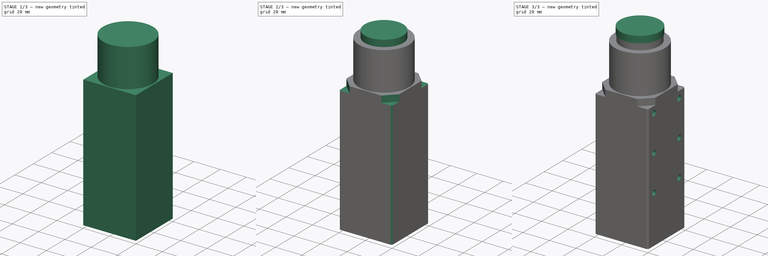
[diagram: build sequence overview — one tinted view per stage of 3, left to right]
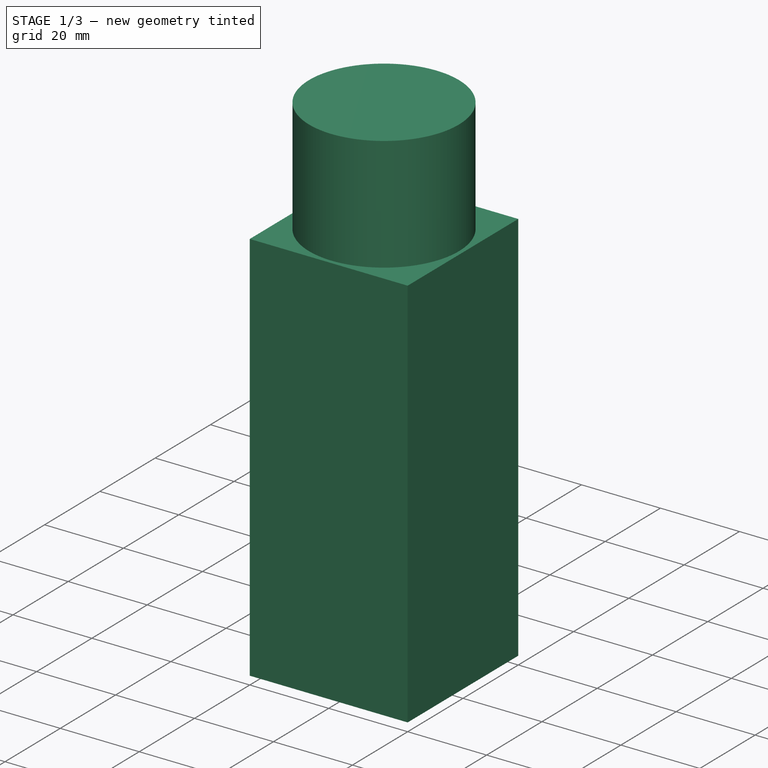
[diagram: stage 1 of 3 — iso view after this stage's code; geometry added in this stage tinted green]
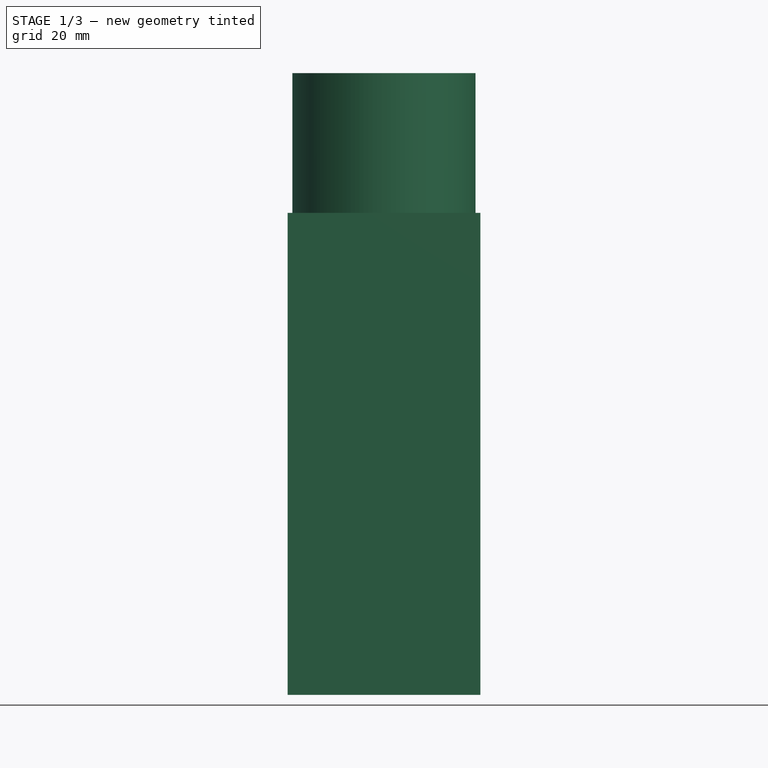
[diagram: stage 1 of 3 — front view after this stage's code; geometry added in this stage tinted green]
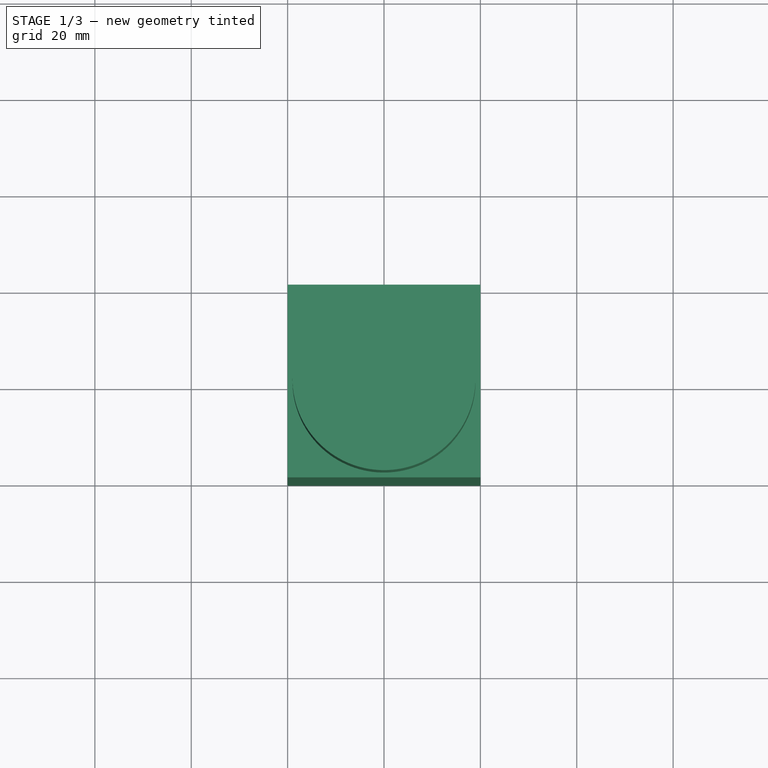
[diagram: stage 1 of 3 — top view after this stage's code; geometry added in this stage tinted green]
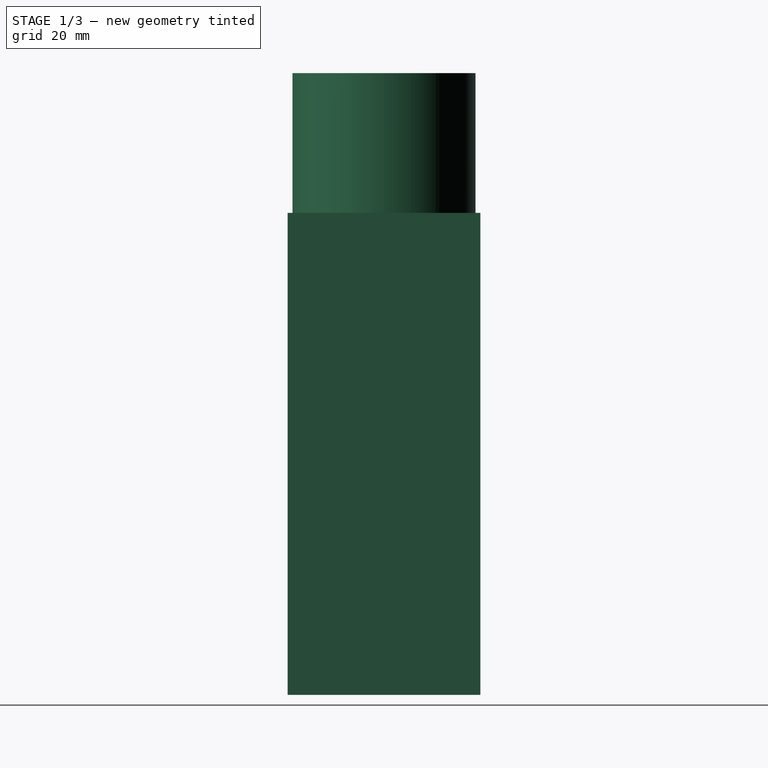
[diagram: stage 1 of 3 — right view after this stage's code; geometry added in this stage tinted green]
FCSTD DOCUMENT  (FreeCAD 0.19R)
Label: microscope
License: All rights reserved
LicenseURL: http://en.wikipedia.org/wiki/All_rights_reserved
objects: Sketcher::SketchObject×6, PartDesign::Pad×4, PartDesign::Pocket×2, PartDesign::Chamfer×1, PartDesign::Body×1
note: 21 computed .brp shape members not serialized (recipe doc carries the construction recipe); baked Part::Feature solids carry a one-line shape summary decoded from their .brp

FEATURE [Sketcher::SketchObject] Sketch
  MapMode = 5
  Support = -> [XY_Plane002]
  sketch-geometry (1):
    g0: Circle CenterX=0 CenterY=0 CenterZ=0 NormalX=0 NormalY=0 NormalZ=1 AngleXU=0 Radius=19
  constraints (2):
    c: Coincident(g0,g-1)
    c: Diameter(g0) = 38
FEATURE [PartDesign::Pad] Pad
  Direction = (1,1,1)
  Length = 29
  Length2 = 100
  Profile = -> Sketch
  Type = 0
FEATURE [Sketcher::SketchObject] Sketch001
  MapMode = 5
  Placement = pos=(0,0,0) rot=(1,0,0;3.14159rad)
  Support = -> [Pad]
  sketch-geometry (4):
    g0: LineSegment StartX=-20 StartY=20 StartZ=0 EndX=20 EndY=20 EndZ=0
    g1: LineSegment StartX=20 StartY=20 StartZ=0 EndX=20 EndY=-20 EndZ=0
    g2: LineSegment StartX=20 StartY=-20 StartZ=0 EndX=-20 EndY=-20 EndZ=0
    g3: LineSegment StartX=-20 StartY=-20 StartZ=0 EndX=-20 EndY=20 EndZ=0
  constraints (10):
    c: Coincident(g0,g1)
    c: Coincident(g1,g2)
    c: Coincident(g2,g3)
    c: Coincident(g3,g0)
    c: Horizontal(g2)
    c: Vertical(g3)
    c: Symmetric(g0,g0,g-2)
    c: Symmetric(g1,g0,g-1)
    c: DistanceY(g1,g1) = 40
    c: DistanceX(g0,g0) = 40
FEATURE [PartDesign::Pad] Pad001
  BaseFeature = -> Pad
  Direction = (1,1,1)
  Length = 100
  Length2 = 100
  Profile = -> Sketch001
  Type = 0
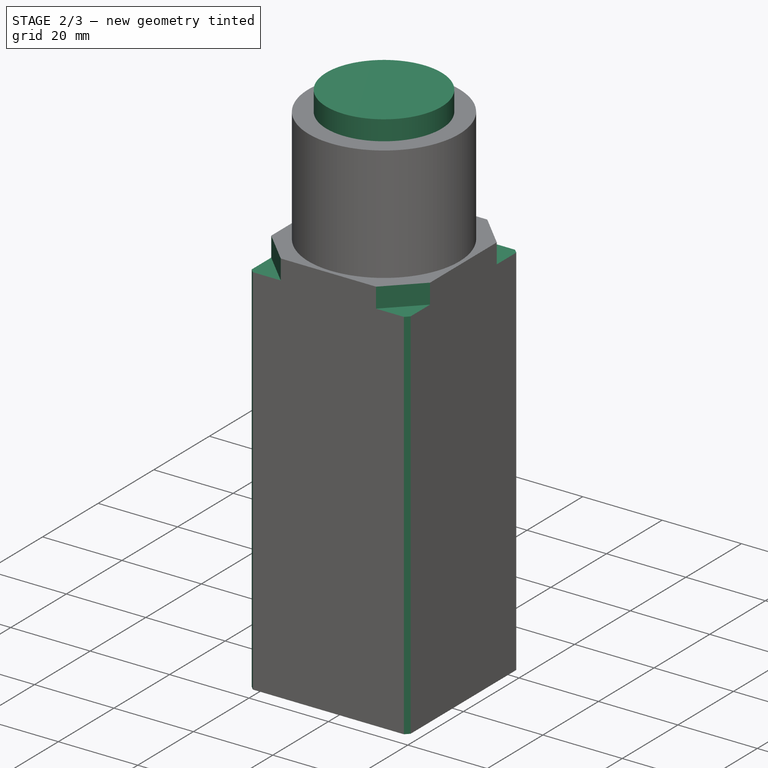
[diagram: stage 2 of 3 — iso view after this stage's code; geometry added in this stage tinted green]
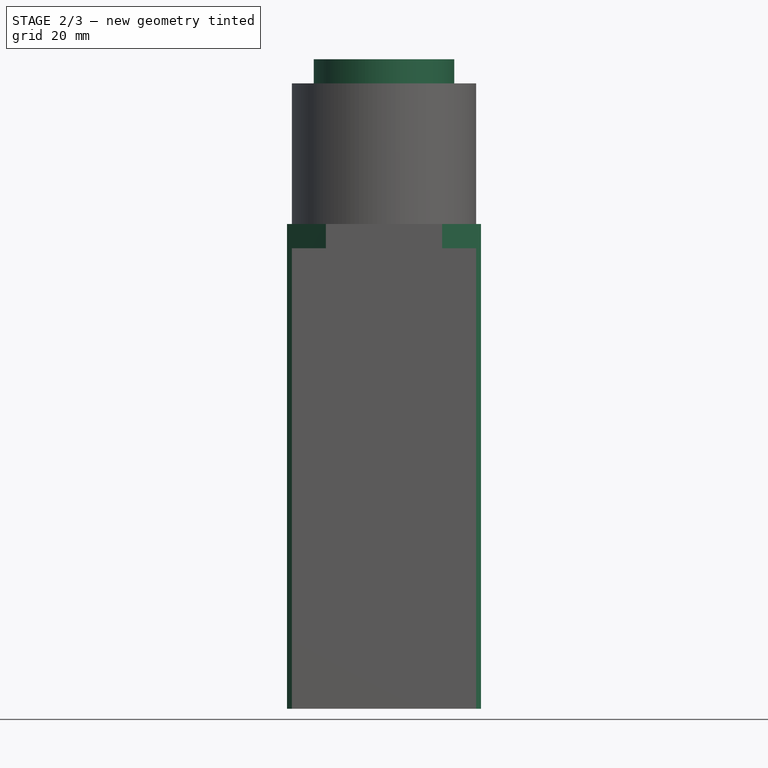
[diagram: stage 2 of 3 — front view after this stage's code; geometry added in this stage tinted green]
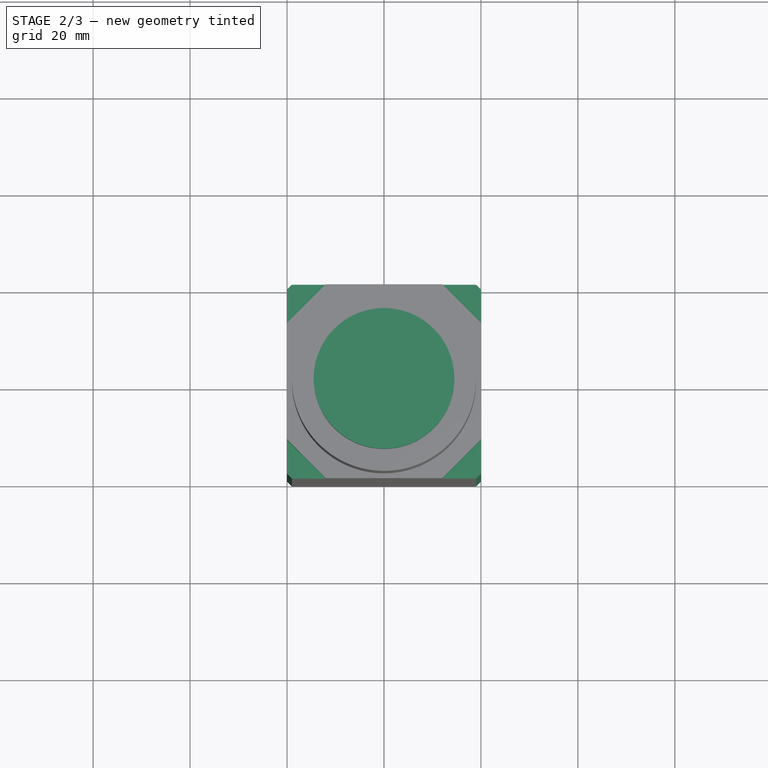
[diagram: stage 2 of 3 — top view after this stage's code; geometry added in this stage tinted green]
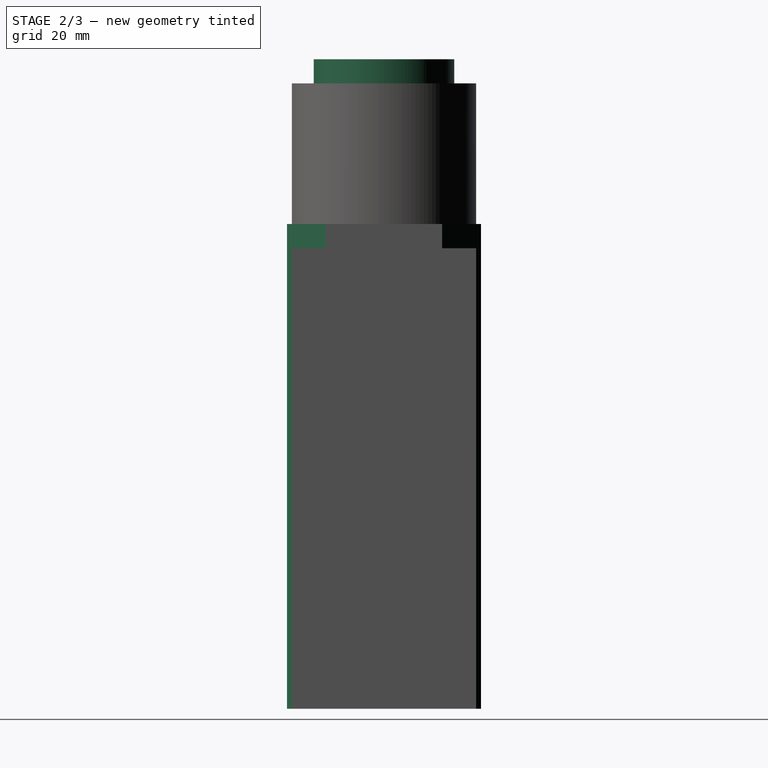
[diagram: stage 2 of 3 — right view after this stage's code; geometry added in this stage tinted green]
FEATURE [Sketcher::SketchObject] Sketch002
  MapMode = 5
  Support = -> [Pad001]
  sketch-geometry (12):
    g0: LineSegment StartX=-20 StartY=12 StartZ=0 EndX=-20 EndY=20 EndZ=0
    g1: LineSegment StartX=-20 StartY=20 StartZ=0 EndX=-12 EndY=20 EndZ=0
    g2: LineSegment StartX=-12 StartY=20 StartZ=0 EndX=-20 EndY=12 EndZ=0
    g3: LineSegment StartX=12 StartY=20 StartZ=0 EndX=20 EndY=20 EndZ=0
    g4: LineSegment StartX=20 StartY=20 StartZ=0 EndX=20 EndY=12 EndZ=0
    g5: LineSegment StartX=20 StartY=12 StartZ=0 EndX=12 EndY=20 EndZ=0
    g6: LineSegment StartX=20 StartY=-12 StartZ=0 EndX=20 EndY=-20 EndZ=0
    g7: LineSegment StartX=20 StartY=-20 StartZ=0 EndX=12 EndY=-20 EndZ=0
    g8: LineSegment StartX=12 StartY=-20 StartZ=0 EndX=20 EndY=-12 EndZ=0
    g9: LineSegment StartX=-12 StartY=-20 StartZ=0 EndX=-20 EndY=-20 EndZ=0
    g10: LineSegment StartX=-20 StartY=-20 StartZ=0 EndX=-20 EndY=-12 EndZ=0
    g11: LineSegment StartX=-20 StartY=-12 StartZ=0 EndX=-12 EndY=-20 EndZ=0
  constraints (30):
    c: Vertical(g0)
    c: Coincident(g0,g1)
    c: Horizontal(g1)
    c: Coincident(g1,g2)
    c: Coincident(g2,g0)
    c: Coincident(g3,g4)
    c: Coincident(g4,g5)
    c: Coincident(g5,g3)
    c: Coincident(g6,g7)
    c: Coincident(g7,g8)
    c: Coincident(g8,g6)
    c: Coincident(g9,g10)
    c: Coincident(g10,g11)
    c: Coincident(g11,g9)
    c: Symmetric(g1,g3,g-2)
    c: Symmetric(g4,g0,g-2)
    c: Symmetric(g0,g10,g-1)
    c: Symmetric(g9,g1,g-1)
    c: Horizontal(g3)
    c: Vertical(g4)
    c: Horizontal(g9)
    c: Vertical(g10)
    c: Horizontal(g7)
    c: Vertical(g6)
    c: Symmetric(g6,g4,g-1)
    c: Symmetric(g7,g3,g-1)
    c: DistanceY(g9,g0) = 40
    c: DistanceX(g0,g3) = 40
    c: DistanceX(g1,g1) = 8
    c: DistanceY(g0,g0) = 8
FEATURE [PartDesign::Pocket] Pocket
  BaseFeature = -> Pad001
  Length = 5
  Length2 = 100
  Profile = -> Sketch002
  Type = 0
FEATURE [PartDesign::Chamfer] Chamfer
  Angle = 45
  Base = -> Pocket [Edge8,Edge6,Edge25,Edge31]
  BaseFeature = -> Pocket
  ChamferType = 0
  FlipDirection = false
  Size = 1
  Size2 = 1
  SupportTransform = false
FEATURE [Sketcher::SketchObject] Sketch003
  MapMode = 5
  Placement = pos=(0,0,29) rot=(0,0,1;0rad)
  Support = -> [Chamfer]
  sketch-geometry (1):
    g0: Circle CenterX=0 CenterY=0 CenterZ=0 NormalX=0 NormalY=0 NormalZ=1 AngleXU=0 Radius=14.5
  constraints (2):
    c: Coincident(g0,g-1)
    c: Diameter(g0) = 29
FEATURE [PartDesign::Pad] Pad002
  BaseFeature = -> Chamfer
  Direction = (1,1,1)
  Length = 5
  Length2 = 100
  Profile = -> Sketch003
  Type = 0
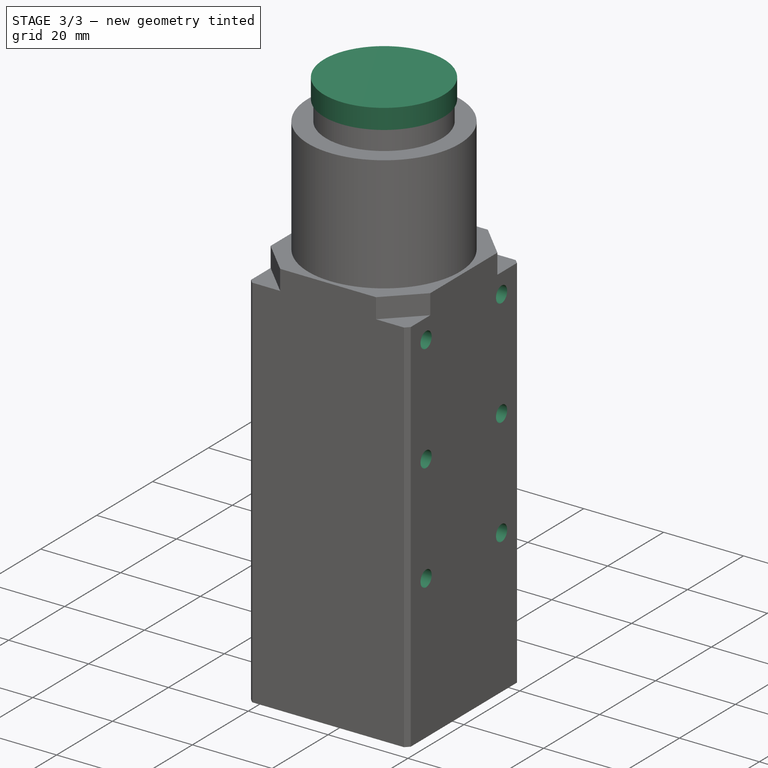
[diagram: stage 3 of 3 — iso view after this stage's code; geometry added in this stage tinted green]
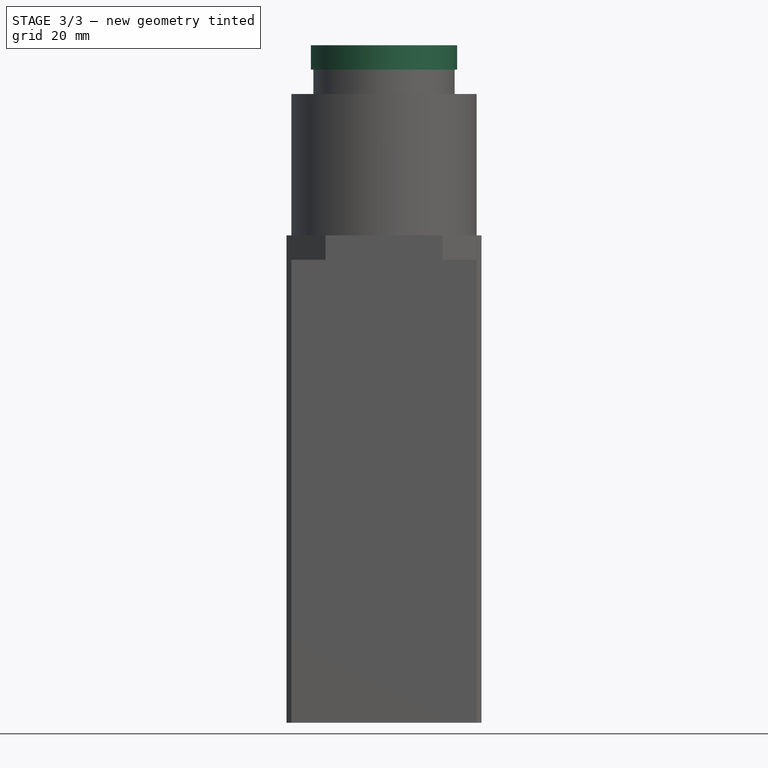
[diagram: stage 3 of 3 — front view after this stage's code; geometry added in this stage tinted green]
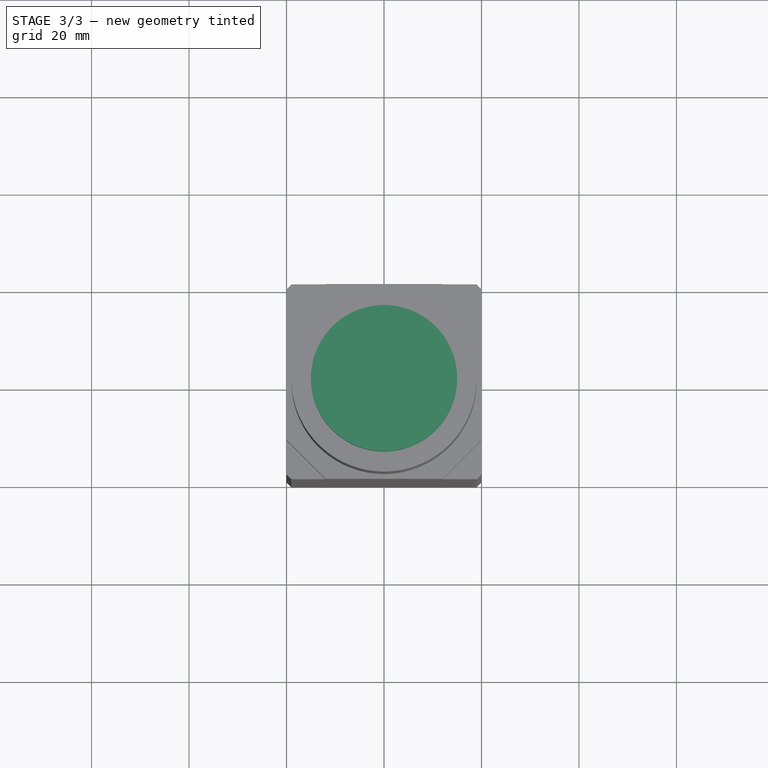
[diagram: stage 3 of 3 — top view after this stage's code; geometry added in this stage tinted green]
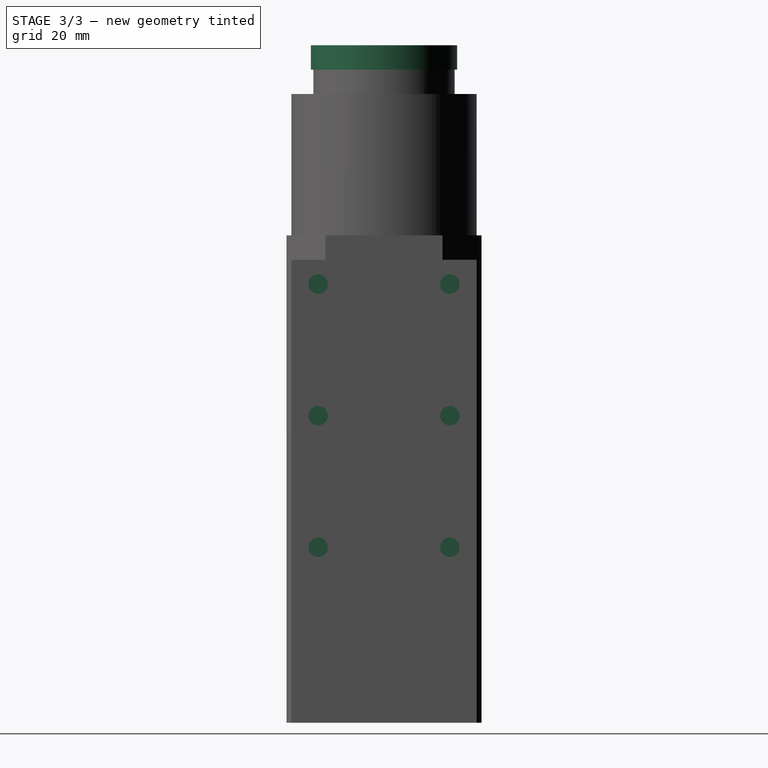
[diagram: stage 3 of 3 — right view after this stage's code; geometry added in this stage tinted green]
FEATURE [Sketcher::SketchObject] Sketch016
  MapMode = 5
  Placement = pos=(0,0,34) rot=(0,0,1;0rad)
  Support = -> [Pad002]
  sketch-geometry (1):
    g0: Circle CenterX=0 CenterY=0 CenterZ=0 NormalX=0 NormalY=0 NormalZ=1 AngleXU=0 Radius=15
  constraints (2):
    c: Coincident(g0,g-1)
    c: Diameter(g0) = 30
FEATURE [PartDesign::Pad] Pad010
  BaseFeature = -> Pad002
  Direction = (1,1,1)
  Length = 5
  Length2 = 100
  Profile = -> Sketch016
  Type = 0
FEATURE [Sketcher::SketchObject] Sketch014
  MapMode = 5
  Placement = pos=(20,0,0) rot=(0.57735,0.57735,0.57735;2.0944rad)
  Support = -> [Chamfer,Pad010]
  sketch-geometry (6):
    g0: Circle CenterX=-13.5 CenterY=-10 CenterZ=0 NormalX=0 NormalY=0 NormalZ=1 AngleXU=0 Radius=2
    g1: Circle CenterX=13.5 CenterY=-10 CenterZ=0 NormalX=0 NormalY=0 NormalZ=1 AngleXU=0 Radius=2
    g2: Circle CenterX=13.5 CenterY=-37 CenterZ=0 NormalX=0 NormalY=0 NormalZ=1 AngleXU=0 Radius=2
    g3: Circle CenterX=-13.5 CenterY=-37 CenterZ=0 NormalX=0 NormalY=0 NormalZ=1 AngleXU=0 Radius=2
    g4: Circle CenterX=13.5 CenterY=-64 CenterZ=0 NormalX=0 NormalY=0 NormalZ=1 AngleXU=0 Radius=2
    g5: Circle CenterX=-13.5 CenterY=-64 CenterZ=0 NormalX=0 NormalY=0 NormalZ=1 AngleXU=0 Radius=2
  constraints (15):
    c: Symmetric(g1,g0,g-2)
    c: Symmetric(g2,g3,g-2)
    c: Symmetric(g4,g5,g-2)
    c: DistanceX(g0,g1) = 27
    c: Vertical(g2,g1)
    c: Vertical(g4,g2)
    c: DistanceY(g2,g1) = 27
    c: DistanceY(g4,g2) = 27
    c: DistanceY(g1,g-1) = 10
    c: Diameter(g0) = 4
    c: Equal(g1,g0)
    c: Equal(g0,g3)
    c: Equal(g3,g2)
    c: Equal(g2,g4)
    c: Equal(g4,g5)
FEATURE [PartDesign::Pocket] Pocket001
  BaseFeature = -> Pad010
  Length = 5
  Length2 = 100
  Profile = -> Sketch014
  Type = 0
FEATURE [PartDesign::Body] Body
  Group = -> [Sketch,Pad,Sketch001,Pad001,Sketch002,Pocket,Chamfer,Sketch003,Pad002,Sketch014,Pad010,Pocket001]
  Origin = -> Origin002
  Tip = -> Pocket001
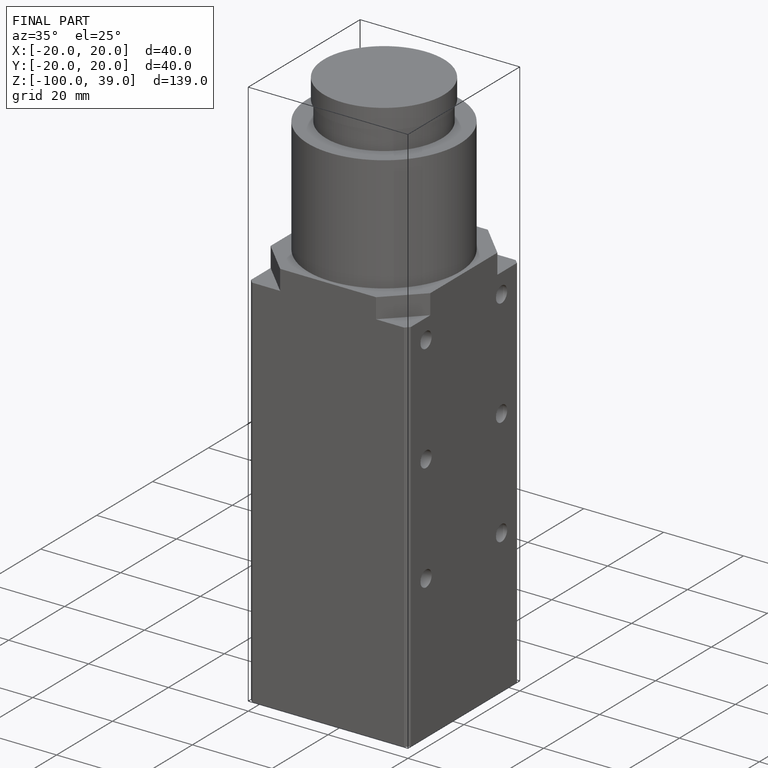
[diagram: finished part — iso view with bounding-box wireframe]
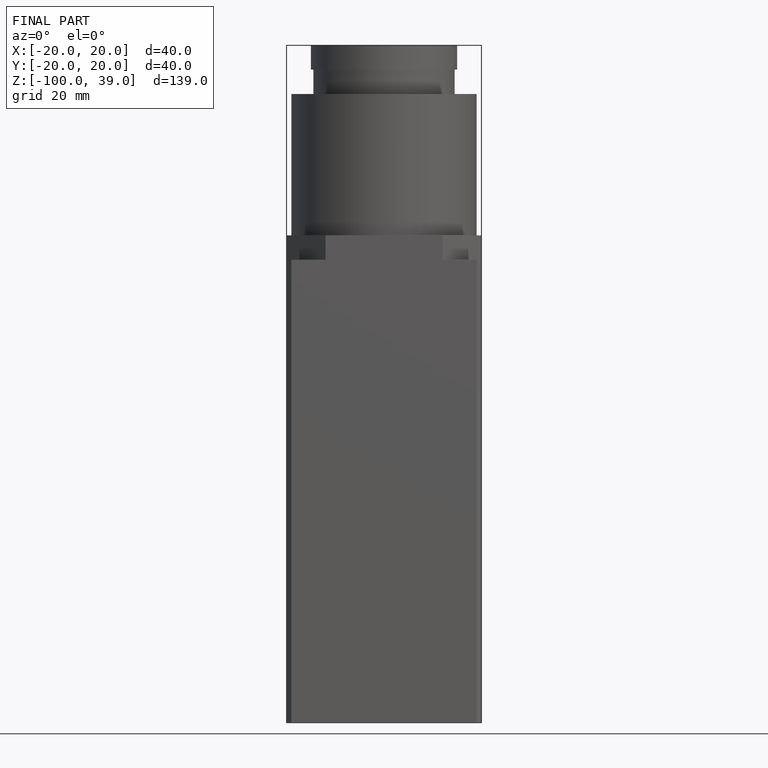
[diagram: finished part — front view with bounding-box wireframe]
